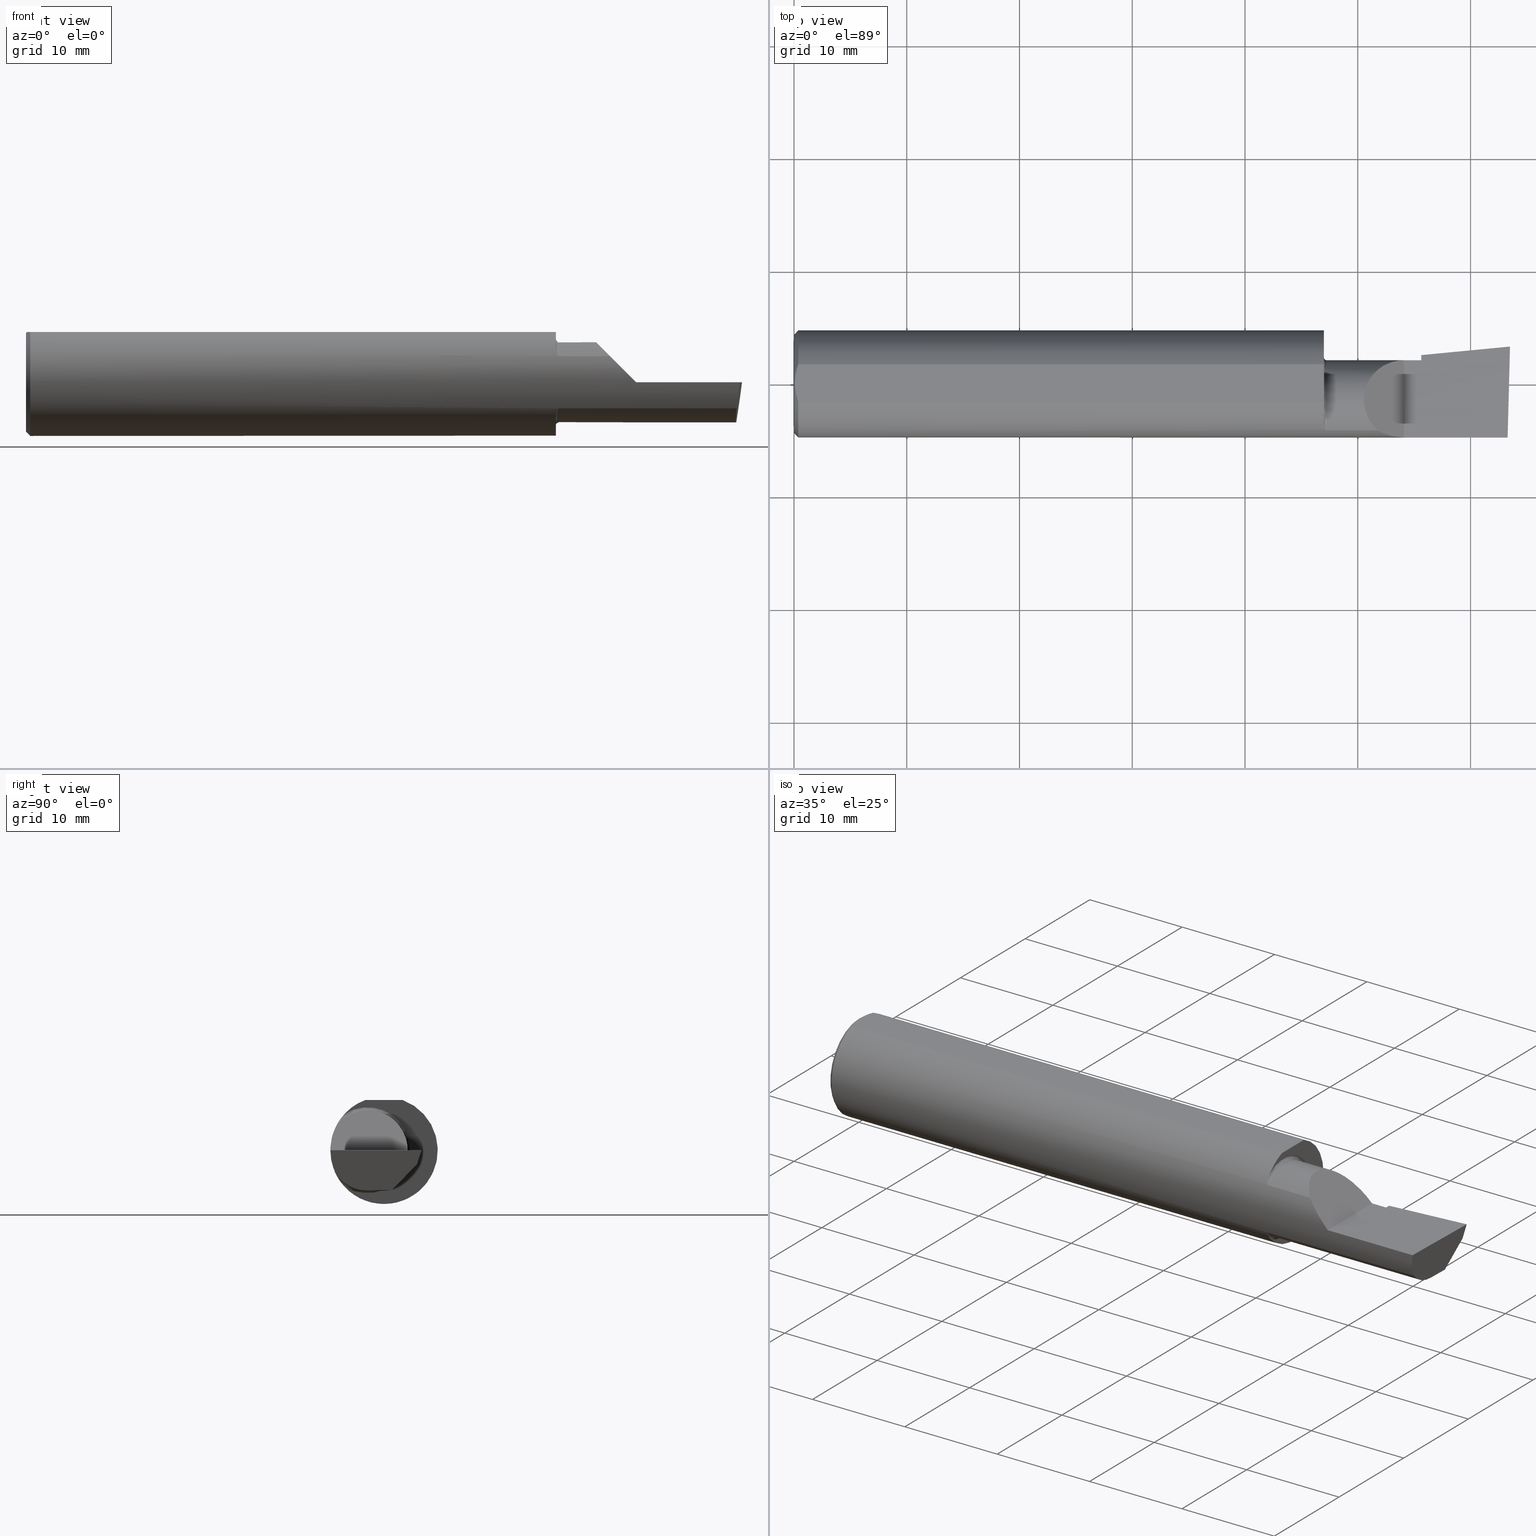
[diagram: canonical four-view strip — front | top / right | iso, engineering-drawing reading convention]
A machine part, canonical four-view strip (front | top / right | iso — engineering-drawing reading convention). The complete STEP part file that produces these views, byte-faithful:
ISO-10303-21;
HEADER;
FILE_DESCRIPTION (( 'STEP AP214' ),
    '1' );
FILE_NAME ('B320600.STEP',
    '2020-05-07T19:08:42',
    ( '' ),
    ( '' ),
    'SwSTEP 2.0',
    'SolidWorks 2018',
    '' );
FILE_SCHEMA (( 'AUTOMOTIVE_DESIGN' ));
ENDSEC;

DATA;
#1 = CARTESIAN_POINT ( 'NONE',  ( 1.850000000000000311, 0.0000000000000000000, 0.0000000000000000000 ) ) ;
#2 = ORIENTED_EDGE ( 'NONE', *, *, #427, .T. ) ;
#3 = APPLICATION_CONTEXT ( 'automotive_design' ) ;
#4 =( NAMED_UNIT ( * ) SI_UNIT ( $, .STERADIAN. ) SOLID_ANGLE_UNIT ( ) );
#5 = FACE_OUTER_BOUND ( 'NONE', #364, .T. ) ;
#6 = AXIS2_PLACEMENT_3D ( 'NONE', #69, #138, #185 ) ;
#7 = CYLINDRICAL_SURFACE ( 'NONE', #182, 0.1400500000000000078 ) ;
#8 = CARTESIAN_POINT ( 'NONE',  ( 0.0000000000000000000, 0.06597272163553663527, 0.1753499999999999781 ) ) ;
#9 = CARTESIAN_POINT ( 'NONE',  ( 2.189999999999999947, 0.02208021110064905049, -0.1153121786430048451 ) ) ;
#10 =( NAMED_UNIT ( * ) PLANE_ANGLE_UNIT ( ) SI_UNIT ( $, .RADIAN. ) );
#11 = DIRECTION ( 'NONE',  ( -6.829619984160658046E-18, 1.000000000000000000, 0.0000000000000000000 ) ) ;
#12 = AXIS2_PLACEMENT_3D ( 'NONE', #357, #457, #370 ) ;
#13 = CIRCLE ( 'NONE', #402, 0.1873499999999999888 ) ;
#14 = DIRECTION ( 'NONE',  ( 0.0000000000000000000, 0.0000000000000000000, 1.000000000000000000 ) ) ;
#15 =( CONVERSION_BASED_UNIT ( 'INCH', #329 ) LENGTH_UNIT ( ) NAMED_UNIT ( #189 ) );
#16 = CIRCLE ( 'NONE', #408, 0.1873499999999999888 ) ;
#17 = ORIENTED_EDGE ( 'NONE', *, *, #516, .F. ) ;
#18 = EDGE_CURVE ( 'NONE', #362, #407, #244, .T. ) ;
#19 =( LENGTH_UNIT ( ) NAMED_UNIT ( * ) SI_UNIT ( $, .METRE. ) );
#20 = CARTESIAN_POINT ( 'NONE',  ( 2.129999999999999893, -0.2500000000000000555, 1.065442715258197396E-16 ) ) ;
#21 = ORIENTED_EDGE ( 'NONE', *, *, #369, .T. ) ;
#22 = DIRECTION ( 'NONE',  ( 4.755568962650851256E-18, -0.6963153109074922131, -0.7177360153954950306 ) ) ;
#23 = CARTESIAN_POINT ( 'NONE',  ( 2.189999999999999947, 0.09745742888373050417, -0.01088401009027229610 ) ) ;
#24 = CARTESIAN_POINT ( 'NONE',  ( 2.129999999999999893, 0.08264999999999990410, 1.065442715258197396E-16 ) ) ;
#25 = CARTESIAN_POINT ( 'NONE',  ( 0.01499999999999999424, 0.0000000000000000000, 0.0000000000000000000 ) ) ;
#26 = CARTESIAN_POINT ( 'NONE',  ( 1.850000000000000311, -0.1383256097560975062, -0.1263568288047932087 ) ) ;
#27 = AXIS2_PLACEMENT_3D ( 'NONE', #540, #150, #441 ) ;
#28 = ADVANCED_FACE ( 'NONE', ( #264 ), #250, .T. ) ;
#29 = CARTESIAN_POINT ( 'NONE',  ( 0.0000000000000000000, 0.0000000000000000000, 0.0000000000000000000 ) ) ;
#30 = DIRECTION ( 'NONE',  ( 4.755568962650851256E-18, -0.6963153109074922131, -0.7177360153954950306 ) ) ;
#31 = PRODUCT_DEFINITION_CONTEXT ( 'detailed design', #3, 'design' ) ;
#32 = CARTESIAN_POINT ( 'NONE',  ( 2.129999999999999893, -0.1873499999999999888, 1.065442715258197396E-16 ) ) ;
#33 = VECTOR ( 'NONE', #122, 39.37007874015748143 ) ;
#34 = VERTEX_POINT ( 'NONE', #345 ) ;
#35 = CARTESIAN_POINT ( 'NONE',  ( 1.860000000000000098, -0.05739999999999999963, 0.0000000000000000000 ) ) ;
#36 = EDGE_CURVE ( 'NONE', #588, #563, #304, .T. ) ;
#37 = EDGE_LOOP ( 'NONE', ( #204, #493, #44, #539, #593, #305 ) ) ;
#38 = CARTESIAN_POINT ( 'NONE',  ( 2.129999999999999893, 0.08264999999999990410, 1.065442715258197396E-16 ) ) ;
#39 = CARTESIAN_POINT ( 'NONE',  ( 0.01499999999999999424, 0.06597272163553663527, 0.1753499999999999781 ) ) ;
#40 = AXIS2_PLACEMENT_3D ( 'NONE', #35, #217, #134 ) ;
#41 = SURFACE_STYLE_FILL_AREA ( #174 ) ;
#42 = CARTESIAN_POINT ( 'NONE',  ( 2.097861799102314961, -0.1873500000000000165, 0.03213820089768509858 ) ) ;
#43 = VECTOR ( 'NONE', #90, 39.37007874015748143 ) ;
#44 = ORIENTED_EDGE ( 'NONE', *, *, #391, .F. ) ;
#45 = EDGE_CURVE ( 'NONE', #484, #512, #505, .T. ) ;
#46 = DIRECTION ( 'NONE',  ( -0.7071067811865511255, 0.0000000000000000000, 0.7071067811865437980 ) ) ;
#47 = STYLED_ITEM ( 'NONE', ( #56 ), #438 ) ;
#48 = CARTESIAN_POINT ( 'NONE',  ( 0.01499999999999999424, 0.0000000000000000000, 0.0000000000000000000 ) ) ;
#49 = CARTESIAN_POINT ( 'NONE',  ( 0.01499999999999999424, 2.294375778202566330E-17, 0.1873499999999999888 ) ) ;
#50 = VECTOR ( 'NONE', #83, 39.37007874015748143 ) ;
#51 = LINE ( 'NONE', #115, #43 ) ;
#52 = EDGE_CURVE ( 'NONE', #301, #147, #532, .T. ) ;
#53 = CARTESIAN_POINT ( 'NONE',  ( 2.189999999999999947, 0.1008003950587628567, 0.0000000000000000000 ) ) ;
#54 =( CONVERSION_BASED_UNIT ( 'INCH', #392 ) LENGTH_UNIT ( ) NAMED_UNIT ( #422 ) );
#55 = FACE_OUTER_BOUND ( 'NONE', #545, .T. ) ;
#56 = PRESENTATION_STYLE_ASSIGNMENT (( #164 ) ) ;
#57 = DIRECTION ( 'NONE',  ( 0.0000000000000000000, 0.2936076258024060137, 0.9559260233253795702 ) ) ;
#58 = FACE_OUTER_BOUND ( 'NONE', #65, .T. ) ;
#59 = DIRECTION ( 'NONE',  ( 0.0000000000000000000, 0.0000000000000000000, -1.000000000000000000 ) ) ;
#60 = AXIS2_PLACEMENT_3D ( 'NONE', #548, #386, #199 ) ;
#61 = DIRECTION ( 'NONE',  ( 1.000000000000000000, 0.0000000000000000000, 0.0000000000000000000 ) ) ;
#62 = VERTEX_POINT ( 'NONE', #284 ) ;
#63 = CARTESIAN_POINT ( 'NONE',  ( 2.189999999999999947, -0.05739999999999999963, -0.1400500000000000633 ) ) ;
#64 = DIRECTION ( 'NONE',  ( -1.000000000000000000, -6.829619984160658046E-18, -0.0000000000000000000 ) ) ;
#65 = EDGE_LOOP ( 'NONE', ( #2, #534 ) ) ;
#66 = CARTESIAN_POINT ( 'NONE',  ( 0.0000000000000000000, 2.202527268266512578E-17, 0.1723499999999996424 ) ) ;
#67 = CARTESIAN_POINT ( 'NONE',  ( 0.0000000000000000000, -0.05740000000000001351, 0.0000000000000000000 ) ) ;
#68 = FACE_OUTER_BOUND ( 'NONE', #458, .T. ) ;
#69 = CARTESIAN_POINT ( 'NONE',  ( 1.860000000000000098, -0.05740000000000000657, 0.0000000000000000000 ) ) ;
#70 = STYLED_ITEM ( 'NONE', ( #163 ), #429 ) ;
#71 = CARTESIAN_POINT ( 'NONE',  ( 2.189999999999999947, 0.06670933817657891118, -0.06931012851386068874 ) ) ;
#72 =( NAMED_UNIT ( * ) SI_UNIT ( $, .STERADIAN. ) SOLID_ANGLE_UNIT ( ) );
#73 = TOROIDAL_SURFACE ( 'NONE', #40, 0.1500499999999999889, 0.009999999999999944697 ) ;
#74 = DIRECTION ( 'NONE',  ( 1.000000000000000000, 0.0000000000000000000, 0.0000000000000000000 ) ) ;
#75 = ADVANCED_FACE ( 'NONE', ( #555 ), #114, .F. ) ;
#76 = CARTESIAN_POINT ( 'NONE',  ( 0.01499999999999999424, 0.0000000000000000000, -0.1873499999999999888 ) ) ;
#77 = FACE_OUTER_BOUND ( 'NONE', #451, .T. ) ;
#78 = DIRECTION ( 'NONE',  ( 2.005228508682077051E-18, -0.2936076258024061247, -0.9559260233253795702 ) ) ;
#79 = ORIENTED_EDGE ( 'NONE', *, *, #492, .T. ) ;
#80 = AXIS2_PLACEMENT_3D ( 'NONE', #514, #573, #289 ) ;
#81 = CARTESIAN_POINT ( 'NONE',  ( 1.852284340146846953, -0.1548226717605716285, -0.1055657780131311618 ) ) ;
#82 =( GEOMETRIC_REPRESENTATION_CONTEXT ( 3 ) GLOBAL_UNCERTAINTY_ASSIGNED_CONTEXT ( ( #308 ) ) GLOBAL_UNIT_ASSIGNED_CONTEXT ( ( #157, #144, #136 ) ) REPRESENTATION_CONTEXT ( 'NONE', 'WORKASPACE' ) );
#83 = DIRECTION ( 'NONE',  ( -6.829619984160658816E-18, 1.000000000000000000, 7.059994452165177242E-34 ) ) ;
#84 = ORIENTED_EDGE ( 'NONE', *, *, #249, .T. ) ;
#85 = CARTESIAN_POINT ( 'NONE',  ( 0.0000000000000000000, 0.0000000000000000000, 0.0000000000000000000 ) ) ;
#86 = CARTESIAN_POINT ( 'NONE',  ( 2.024999999999999911, -0.1635956445993030084, -0.09130436773856176469 ) ) ;
#87 = EDGE_CURVE ( 'NONE', #563, #519, #343, .T. ) ;
#88 = ADVANCED_FACE ( 'NONE', ( #372 ), #106, .T. ) ;
#89 = DIRECTION ( 'NONE',  ( 1.000000000000000000, 0.0000000000000000000, 0.0000000000000000000 ) ) ;
#90 = DIRECTION ( 'NONE',  ( 0.7071067811865390240, 0.0000000000000000000, -0.7071067811865560104 ) ) ;
#91 = ORIENTED_EDGE ( 'NONE', *, *, #358, .F. ) ;
#92 = FACE_OUTER_BOUND ( 'NONE', #135, .T. ) ;
#93 = ORIENTED_EDGE ( 'NONE', *, *, #527, .F. ) ;
#94 = ORIENTED_EDGE ( 'NONE', *, *, #187, .T. ) ;
#95 = ORIENTED_EDGE ( 'NONE', *, *, #87, .F. ) ;
#96 = PLANE ( 'NONE',  #436 ) ;
#97 = VECTOR ( 'NONE', #469, 39.37007874015748854 ) ;
#98 = DIRECTION ( 'NONE',  ( -0.09165774897393341725, 0.9519021185660614393, -0.2923717047227303301 ) ) ;
#99 = CARTESIAN_POINT ( 'NONE',  ( 0.0000000000000000000, 0.0000000000000000000, -0.1723499999999996424 ) ) ;
#100 = AXIS2_PLACEMENT_3D ( 'NONE', #326, #510, #190 ) ;
#101 = VECTOR ( 'NONE', #567, 39.37007874015748143 ) ;
#102 = CARTESIAN_POINT ( 'NONE',  ( 0.004093196532652216939, -0.02240707710020816909, 0.1753499999999999504 ) ) ;
#103 = CARTESIAN_POINT ( 'NONE',  ( 1.858200855161538323, -0.1632467142437135921, -0.09192985110639206869 ) ) ;
#104 = ORIENTED_EDGE ( 'NONE', *, *, #349, .F. ) ;
#105 = FILL_AREA_STYLE_COLOUR ( '', #474 ) ;
#106 = PLANE ( 'NONE',  #146 ) ;
#107 = CARTESIAN_POINT ( 'NONE',  ( 1.850000000000000311, -0.1383256097560975062, 0.1263568288047932087 ) ) ;
#108 = ORIENTED_EDGE ( 'NONE', *, *, #36, .F. ) ;
#109 = LINE ( 'NONE', #121, #420 ) ;
#110 = VERTEX_POINT ( 'NONE', #584 ) ;
#111 = CARTESIAN_POINT ( 'NONE',  ( 2.477873865042410806, -0.05739999999999999963, -0.1400500000000000633 ) ) ;
#112 = DIRECTION ( 'NONE',  ( 1.000000000000000000, 0.0000000000000000000, 0.0000000000000000000 ) ) ;
#113 = VECTOR ( 'NONE', #491, 39.37007874015748143 ) ;
#114 = PLANE ( 'NONE',  #80 ) ;
#115 = CARTESIAN_POINT ( 'NONE',  ( 0.01499999999999999424, 0.0000000000000000000, -0.1873499999999999888 ) ) ;
#116 = FACE_OUTER_BOUND ( 'NONE', #294, .T. ) ;
#117 = EDGE_CURVE ( 'NONE', #172, #354, #128, .T. ) ;
#118 = VECTOR ( 'NONE', #426, 39.37007874015748854 ) ;
#119 = CARTESIAN_POINT ( 'NONE',  ( 2.189999999999999947, 0.06026672169836851112, -0.07595093880103585826 ) ) ;
#120 = CARTESIAN_POINT ( 'NONE',  ( 1.860000000000000098, -0.1635956445993029529, 0.09130436773856188959 ) ) ;
#121 = CARTESIAN_POINT ( 'NONE',  ( 2.511419111345317923, 0.1163922996227946260, -0.04999999999999999584 ) ) ;
#122 = DIRECTION ( 'NONE',  ( -0.0000000000000000000, 1.000000000000000000, -0.0000000000000000000 ) ) ;
#123 = DIRECTION ( 'NONE',  ( -0.9953961983671800740, -0.09584575252021031166, 0.0000000000000000000 ) ) ;
#124 = CIRCLE ( 'NONE', #178, 0.1400500000000000356 ) ;
#125 =( NAMED_UNIT ( * ) PLANE_ANGLE_UNIT ( ) SI_UNIT ( $, .RADIAN. ) );
#126 = APPLICATION_CONTEXT ( 'automotive_design' ) ;
#127 = ADVANCED_FACE ( 'NONE', ( #5 ), #269, .T. ) ;
#128 =( BOUNDED_CURVE ( )  B_SPLINE_CURVE ( 3, ( #501, #280, #219, #268 ),
 .UNSPECIFIED., .F., .F. ) 
 B_SPLINE_CURVE_WITH_KNOTS ( ( 4, 4 ),
 ( 5.632580117768155148, 6.493234751459282528 ),
 .UNSPECIFIED. ) 
 CURVE ( )  GEOMETRIC_REPRESENTATION_ITEM ( )  RATIONAL_B_SPLINE_CURVE ( ( 1.000000000000000000, 0.9392195014330944058, 0.9392195014330944058, 1.000000000000000000 ) ) 
 REPRESENTATION_ITEM ( '' )  );
#129 = APPLICATION_PROTOCOL_DEFINITION ( 'draft international standard', 'automotive_design', 1998, #126 ) ;
#130 = ORIENTED_EDGE ( 'NONE', *, *, #410, .T. ) ;
#131 = FILL_AREA_STYLE ('',( #423 ) ) ;
#132 = SURFACE_STYLE_FILL_AREA ( #131 ) ;
#133 = DIRECTION ( 'NONE',  ( 0.0000000000000000000, 0.0000000000000000000, 1.000000000000000000 ) ) ;
#134 = DIRECTION ( 'NONE',  ( 6.829619984160658046E-18, -1.000000000000000000, 0.0000000000000000000 ) ) ;
#135 = EDGE_LOOP ( 'NONE', ( #475, #231, #424, #168 ) ) ;
#136 =( NAMED_UNIT ( * ) SI_UNIT ( $, .STERADIAN. ) SOLID_ANGLE_UNIT ( ) );
#137 = PLANE ( 'NONE',  #291 ) ;
#138 = DIRECTION ( 'NONE',  ( -1.000000000000000000, -6.829619984160658046E-18, -0.0000000000000000000 ) ) ;
#139 = AXIS2_PLACEMENT_3D ( 'NONE', #227, #325, #382 ) ;
#140 = VECTOR ( 'NONE', #312, 39.37007874015748143 ) ;
#141 = ADVANCED_FACE ( 'NONE', ( #55 ), #197, .F. ) ;
#142 = DIRECTION ( 'NONE',  ( 0.9953961983671787417, 0.09584575252022456415, -1.028972571603813720E-16 ) ) ;
#143 = ORIENTED_EDGE ( 'NONE', *, *, #410, .F. ) ;
#144 =( NAMED_UNIT ( * ) PLANE_ANGLE_UNIT ( ) SI_UNIT ( $, .RADIAN. ) );
#145 = PRESENTATION_LAYER_ASSIGNMENT (  '', '', ( #70 ) ) ;
#146 = AXIS2_PLACEMENT_3D ( 'NONE', #530, #216, #399 ) ;
#147 = VERTEX_POINT ( 'NONE', #321 ) ;
#148 = ORIENTED_EDGE ( 'NONE', *, *, #397, .F. ) ;
#149 = LINE ( 'NONE', #71, #203 ) ;
#150 = DIRECTION ( 'NONE',  ( -1.000000000000000000, -0.0000000000000000000, -0.0000000000000000000 ) ) ;
#151 = EDGE_LOOP ( 'NONE', ( #439, #561, #502, #482 ) ) ;
#152 = PRESENTATION_LAYER_ASSIGNMENT (  '', '', ( #47 ) ) ;
#153 = LINE ( 'NONE', #170, #140 ) ;
#154 = PRODUCT ( 'B320600', 'B320600', '', ( #463 ) ) ;
#155 = EDGE_CURVE ( 'NONE', #536, #354, #183, .T. ) ;
#156 = VECTOR ( 'NONE', #307, 39.37007874015748143 ) ;
#157 =( CONVERSION_BASED_UNIT ( 'INCH', #320 ) LENGTH_UNIT ( ) NAMED_UNIT ( #375 ) );
#158 = ORIENTED_EDGE ( 'NONE', *, *, #455, .F. ) ;
#159 = DIRECTION ( 'NONE',  ( 6.829619984160658046E-18, -1.000000000000000000, 0.0000000000000000000 ) ) ;
#160 =( LENGTH_UNIT ( ) NAMED_UNIT ( * ) SI_UNIT ( $, .METRE. ) );
#161 = EDGE_CURVE ( 'NONE', #62, #309, #464, .T. ) ;
#162 = CARTESIAN_POINT ( 'NONE',  ( 1.921229036482944075, -0.06260079402492431389, 0.2087709635170538203 ) ) ;
#163 = PRESENTATION_STYLE_ASSIGNMENT (( #525 ) ) ;
#164 = SURFACE_STYLE_USAGE ( .BOTH. , #166 ) ;
#165 = VECTOR ( 'NONE', #173, 39.37007874015748143 ) ;
#166 = SURFACE_SIDE_STYLE ('',( #41 ) ) ;
#167 = FACE_OUTER_BOUND ( 'NONE', #558, .T. ) ;
#168 = ORIENTED_EDGE ( 'NONE', *, *, #391, .T. ) ;
#169 = DIRECTION ( 'NONE',  ( -1.000000000000000000, -0.0000000000000000000, -0.0000000000000000000 ) ) ;
#170 = CARTESIAN_POINT ( 'NONE',  ( 2.500000000000000000, -0.05739999999999999963, -0.1400500000000000633 ) ) ;
#171 = VECTOR ( 'NONE', #533, 39.37007874015748143 ) ;
#172 = VERTEX_POINT ( 'NONE', #380 ) ;
#173 = DIRECTION ( 'NONE',  ( -1.000000000000000000, -0.0000000000000000000, -0.0000000000000000000 ) ) ;
#174 = FILL_AREA_STYLE ('',( #105 ) ) ;
#175 = LINE ( 'NONE', #340, #118 ) ;
#176 = EDGE_LOOP ( 'NONE', ( #261, #481, #21, #323 ) ) ;
#177 = ORIENTED_EDGE ( 'NONE', *, *, #390, .T. ) ;
#178 = AXIS2_PLACEMENT_3D ( 'NONE', #317, #275, #313 ) ;
#179 = ORIENTED_EDGE ( 'NONE', *, *, #459, .T. ) ;
#180 = CARTESIAN_POINT ( 'NONE',  ( 0.003000000000000218638, 2.334609556160449697E-17, 0.1753499999999999781 ) ) ;
#181 = APPLICATION_PROTOCOL_DEFINITION ( 'draft international standard', 'automotive_design', 1998, #3 ) ;
#182 = AXIS2_PLACEMENT_3D ( 'NONE', #67, #64, #314 ) ;
#183 = LINE ( 'NONE', #403, #495 ) ;
#184 = CARTESIAN_POINT ( 'NONE',  ( 2.491672876940991710, -0.1873499999999999888, 6.915950918908297591E-17 ) ) ;
#185 = DIRECTION ( 'NONE',  ( 0.0000000000000000000, -1.000000000000000000, 0.0000000000000000000 ) ) ;
#186 = VECTOR ( 'NONE', #292, 39.37007874015748143 ) ;
#187 = EDGE_CURVE ( 'NONE', #263, #398, #318, .T. ) ;
#188 = DIRECTION ( 'NONE',  ( -0.7071067811865439090, 0.0000000000000000000, -0.7071067811865512365 ) ) ;
#189 = DIMENSIONAL_EXPONENTS ( 1.000000000000000000, 0.0000000000000000000, 0.0000000000000000000, 0.0000000000000000000, 0.0000000000000000000, 0.0000000000000000000, 0.0000000000000000000 ) ;
#190 = DIRECTION ( 'NONE',  ( 0.1219104985251942275, 0.0000000000000000000, 0.9925410975618785825 ) ) ;
#191 = UNCERTAINTY_MEASURE_WITH_UNIT (LENGTH_MEASURE( 1.000000000000000082E-05 ), #15, 'distance_accuracy_value', 'NONE');
#192 = CARTESIAN_POINT ( 'NONE',  ( 2.487725449370724817, -0.1873500000000000443, -0.03213820089768506388 ) ) ;
#193 = CARTESIAN_POINT ( 'NONE',  ( 1.850000000000000311, 0.09264999999999999625, 0.0000000000000000000 ) ) ;
#194 = CARTESIAN_POINT ( 'NONE',  ( 2.493766568580444432, 0.1168246249203732934, -0.04780233936830599606 ) ) ;
#195 = ADVANCED_FACE ( 'NONE', ( #417 ), #137, .F. ) ;
#196 = CARTESIAN_POINT ( 'NONE',  ( 0.003000000000000169632, 0.01127363201155560934, 0.1753499999999999781 ) ) ;
#197 = PLANE ( 'NONE',  #274 ) ;
#198 = ORIENTED_EDGE ( 'NONE', *, *, #331, .T. ) ;
#199 = DIRECTION ( 'NONE',  ( 6.829619984160658046E-18, -1.000000000000000000, 0.0000000000000000000 ) ) ;
#200 = CARTESIAN_POINT ( 'NONE',  ( 1.860000000000000098, -0.1635956445993029251, -0.09130436773856194510 ) ) ;
#201 = EDGE_CURVE ( 'NONE', #263, #371, #124, .T. ) ;
#202 = MECHANICAL_DESIGN_GEOMETRIC_PRESENTATION_REPRESENTATION (  '', ( #70 ), #215 ) ;
#203 = VECTOR ( 'NONE', #569, 39.37007874015748854 ) ;
#204 = ORIENTED_EDGE ( 'NONE', *, *, #45, .F. ) ;
#205 = CARTESIAN_POINT ( 'NONE',  ( 2.189999999999999947, 0.06670933817657891118, -0.06931012851386068874 ) ) ;
#206 = EDGE_LOOP ( 'NONE', ( #575, #211, #315, #472, #500 ) ) ;
#207 = ORIENTED_EDGE ( 'NONE', *, *, #87, .T. ) ;
#208 = ORIENTED_EDGE ( 'NONE', *, *, #117, .F. ) ;
#209 = CARTESIAN_POINT ( 'NONE',  ( 1.860000000000000098, -0.1635956445993029251, -0.09130436773856194510 ) ) ;
#210 = PLANE ( 'NONE',  #541 ) ;
#211 = ORIENTED_EDGE ( 'NONE', *, *, #52, .T. ) ;
#212 = VECTOR ( 'NONE', #300, 39.37007874015748143 ) ;
#213 = DIRECTION ( 'NONE',  ( 0.0000000000000000000, 0.0000000000000000000, 1.000000000000000000 ) ) ;
#214 = DIRECTION ( 'NONE',  ( 0.0000000000000000000, 0.0000000000000000000, 1.000000000000000000 ) ) ;
#215 =( GEOMETRIC_REPRESENTATION_CONTEXT ( 3 ) GLOBAL_UNCERTAINTY_ASSIGNED_CONTEXT ( ( #191 ) ) GLOBAL_UNIT_ASSIGNED_CONTEXT ( ( #15, #10, #4 ) ) REPRESENTATION_CONTEXT ( 'NONE', 'WORKASPACE' ) );
#216 = DIRECTION ( 'NONE',  ( -0.06894566448119622548, 0.7160281025913036723, -0.6946583704589932573 ) ) ;
#217 = DIRECTION ( 'NONE',  ( -1.000000000000000000, -6.829619984160658046E-18, -0.0000000000000000000 ) ) ;
#218 = VECTOR ( 'NONE', #74, 39.37007874015748143 ) ;
#219 = CARTESIAN_POINT ( 'NONE',  ( 2.476787929832031221, -0.09887019258091186980, -0.1400500000000000356 ) ) ;
#220 = CARTESIAN_POINT ( 'NONE',  ( 2.481080296960508580, -0.1635956445993030084, -0.09130436773856176469 ) ) ;
#221 = CARTESIAN_POINT ( 'NONE',  ( 2.509953961983671711, 0.1316084575252021438, -6.829619984160658046E-17 ) ) ;
#222 = CARTESIAN_POINT ( 'NONE',  ( 2.500000000000000000, 0.2373500000000000332, 0.1753499999999999504 ) ) ;
#223 = ORIENTED_EDGE ( 'NONE', *, *, #406, .T. ) ;
#224 = CARTESIAN_POINT ( 'NONE',  ( -9.564882787816664242E-19, 0.08264999999999998737, 3.267291166268304703E-16 ) ) ;
#225 = CARTESIAN_POINT ( 'NONE',  ( 2.480058035321255794, 0.02601009779168080016, -0.1400500000000000633 ) ) ;
#226 = ORIENTED_EDGE ( 'NONE', *, *, #352, .F. ) ;
#227 = CARTESIAN_POINT ( 'NONE',  ( 2.189999999999999947, -0.05739999999999999963, 0.0000000000000000000 ) ) ;
#228 = VERTEX_POINT ( 'NONE', #209 ) ;
#229 = ORIENTED_EDGE ( 'NONE', *, *, #390, .F. ) ;
#230 = PLANE ( 'NONE',  #260 ) ;
#231 = ORIENTED_EDGE ( 'NONE', *, *, #566, .T. ) ;
#232 = EDGE_CURVE ( 'NONE', #512, #519, #255, .T. ) ;
#233 = AXIS2_PLACEMENT_3D ( 'NONE', #494, #446, #14 ) ;
#234 = ORIENTED_EDGE ( 'NONE', *, *, #52, .F. ) ;
#235 = VECTOR ( 'NONE', #253, 39.37007874015748143 ) ;
#236 = CIRCLE ( 'NONE', #389, 0.1873499999999999888 ) ;
#237 = CARTESIAN_POINT ( 'NONE',  ( 2.038695632261437130, -0.1635956445993029529, 0.09130436773856191734 ) ) ;
#238 = CARTESIAN_POINT ( 'NONE',  ( 2.066758987970638284, -0.1792580844883770730, 0.06324101202936138755 ) ) ;
#239 =( GEOMETRIC_REPRESENTATION_CONTEXT ( 3 ) GLOBAL_UNCERTAINTY_ASSIGNED_CONTEXT ( ( #594 ) ) GLOBAL_UNIT_ASSIGNED_CONTEXT ( ( #54, #125, #72 ) ) REPRESENTATION_CONTEXT ( 'NONE', 'WORKASPACE' ) );
#240 = CARTESIAN_POINT ( 'NONE',  ( 2.484117089522337452, -0.1792580844883771007, -0.06324101202936138755 ) ) ;
#241 = CARTESIAN_POINT ( 'NONE',  ( 2.189999999999999947, 0.08544315931885974880, -0.05000000000000000278 ) ) ;
#242 = CARTESIAN_POINT ( 'NONE',  ( 2.500188977433779769, 0.1311105994646662165, 0.001440373173041280524 ) ) ;
#243 = ORIENTED_EDGE ( 'NONE', *, *, #352, .T. ) ;
#244 = CIRCLE ( 'NONE', #12, 0.1873499999999999888 ) ;
#245 = DIRECTION ( 'NONE',  ( 0.0000000000000000000, 1.000000000000000000, 0.0000000000000000000 ) ) ;
#246 = CARTESIAN_POINT ( 'NONE',  ( 2.189999999999999947, 0.06670933817657891118, -0.06931012851386068874 ) ) ;
#247 = ADVANCED_FACE ( 'NONE', ( #396 ), #430, .T. ) ;
#248 = DIRECTION ( 'NONE',  ( 0.0000000000000000000, -1.438723400918613551E-16, -1.000000000000000000 ) ) ;
#249 = EDGE_CURVE ( 'NONE', #338, #34, #542, .T. ) ;
#250 = PLANE ( 'NONE',  #60 ) ;
#251 = CARTESIAN_POINT ( 'NONE',  ( 2.129999999999999893, -0.1873499999999999888, 1.065442715258197396E-16 ) ) ;
#252 = ADVANCED_FACE ( 'NONE', ( #58 ), #388, .F. ) ;
#253 = DIRECTION ( 'NONE',  ( 0.7071067811865390240, 8.659560562355036396E-17, 0.7071067811865560104 ) ) ;
#254 = PRODUCT_DEFINITION ( 'UNKNOWN', '', #393, #31 ) ;
#255 = LINE ( 'NONE', #503, #33 ) ;
#256 = CARTESIAN_POINT ( 'NONE',  ( 2.024999999999999911, -0.1635956445993030084, 0.09130436773856176469 ) ) ;
#257 = AXIS2_PLACEMENT_3D ( 'NONE', #332, #473, #379 ) ;
#258 = CIRCLE ( 'NONE', #6, 0.1400499999999999801 ) ;
#259 = FACE_OUTER_BOUND ( 'NONE', #266, .T. ) ;
#260 = AXIS2_PLACEMENT_3D ( 'NONE', #221, #98, #57 ) ;
#261 = ORIENTED_EDGE ( 'NONE', *, *, #488, .T. ) ;
#262 = LINE ( 'NONE', #205, #437 ) ;
#263 = VERTEX_POINT ( 'NONE', #9 ) ;
#264 = FACE_OUTER_BOUND ( 'NONE', #176, .T. ) ;
#265 = CARTESIAN_POINT ( 'NONE',  ( 1.850000000000000533, -0.1434457138613161875, -0.1207517378170855221 ) ) ;
#266 = EDGE_LOOP ( 'NONE', ( #586, #17, #526, #226, #432 ) ) ;
#267 = CARTESIAN_POINT ( 'NONE',  ( 1.857002686248069967, -0.1625222757049325228, 0.09320450095779621302 ) ) ;
#268 = CARTESIAN_POINT ( 'NONE',  ( 2.477873865042410806, -0.05739999999999999963, -0.1400500000000000633 ) ) ;
#269 = CYLINDRICAL_SURFACE ( 'NONE', #233, 0.1873499999999999888 ) ;
#270 = CARTESIAN_POINT ( 'NONE',  ( 2.038695632261437130, -0.1635956445993029529, 0.09130436773856191734 ) ) ;
#271 = CARTESIAN_POINT ( 'NONE',  ( 1.850535130224571612, -0.1482744458446705882, -0.1147666934430601887 ) ) ;
#272 = CARTESIAN_POINT ( 'NONE',  ( 3.377502344341257155E-32, -0.1873499999999999610, 3.267291166268304703E-16 ) ) ;
#273 = ORIENTED_EDGE ( 'NONE', *, *, #440, .F. ) ;
#274 = AXIS2_PLACEMENT_3D ( 'NONE', #53, #277, #159 ) ;
#275 = DIRECTION ( 'NONE',  ( -1.000000000000000000, -6.829619984160658046E-18, -0.0000000000000000000 ) ) ;
#276 = CARTESIAN_POINT ( 'NONE',  ( 1.855249642630817153, -0.1607705839484630805, -0.09620717711675592920 ) ) ;
#277 = DIRECTION ( 'NONE',  ( -1.000000000000000000, -6.829619984160658046E-18, 0.0000000000000000000 ) ) ;
#278 = B_SPLINE_CURVE_WITH_KNOTS ( 'NONE', 3,
 ( #507, #499, #425, #508, #374, #409, #385, #395, #267, #297, #336, #335 ),
 .UNSPECIFIED., .F., .F.,
 ( 4, 2, 2, 2, 2, 4 ),
 ( 0.0009392928737449068215, 0.001524303482983960841, 0.001816808787603487905, 0.001963061439913248510, 0.002036187766068128704, 0.002109314092223008898 ),
 .UNSPECIFIED. ) ;
#279 = ORIENTED_EDGE ( 'NONE', *, *, #418, .F. ) ;
#280 = CARTESIAN_POINT ( 'NONE',  ( 2.477925907309857401, -0.1365595166907235813, -0.1227499502647108609 ) ) ;
#281 = CARTESIAN_POINT ( 'NONE',  ( 1.850000000000000311, -0.06597272163553659363, 0.1753499999999999781 ) ) ;
#282 = CARTESIAN_POINT ( 'NONE',  ( 2.189999999999999947, 0.1008003950587628567, 0.0000000000000000000 ) ) ;
#283 = LINE ( 'NONE', #378, #212 ) ;
#284 = CARTESIAN_POINT ( 'NONE',  ( 2.189999999999999947, 0.08265000000000004288, 3.267291166268305196E-16 ) ) ;
#285 = DIRECTION ( 'NONE',  ( 0.1053106618240635256, 0.6976485211320198054, 0.7086580314005361814 ) ) ;
#286 = CARTESIAN_POINT ( 'NONE',  ( 0.008227791779583789808, -0.04447712204611815878, 0.1753499999999999781 ) ) ;
#287 = ORIENTED_EDGE ( 'NONE', *, *, #455, .T. ) ;
#288 =( BOUNDED_CURVE ( )  B_SPLINE_CURVE ( 3, ( #220, #240, #192, #184 ),
 .UNSPECIFIED., .F., .T. ) 
 B_SPLINE_CURVE_WITH_KNOTS ( ( 4, 4 ),
 ( 0.8516985021657650368, 1.360746882515200484 ),
 .UNSPECIFIED. ) 
 CURVE ( )  GEOMETRIC_REPRESENTATION_ITEM ( )  RATIONAL_B_SPLINE_CURVE ( ( 1.000000000000000000, 0.9785221379938656705, 0.9785221379938656705, 1.000000000000000000 ) ) 
 REPRESENTATION_ITEM ( '' )  );
#289 = DIRECTION ( 'NONE',  ( -1.000000000000000000, 0.0000000000000000000, 1.033731667140896077E-16 ) ) ;
#290 = CARTESIAN_POINT ( 'NONE',  ( 2.490039159128059953, -0.2497391662021650194, 6.932588350567417155E-17 ) ) ;
#291 = AXIS2_PLACEMENT_3D ( 'NONE', #531, #401, #476 ) ;
#292 = DIRECTION ( 'NONE',  ( -1.000000000000000000, -6.829619984160658046E-18, -0.0000000000000000000 ) ) ;
#293 = AXIS2_PLACEMENT_3D ( 'NONE', #25, #112, #59 ) ;
#294 = EDGE_LOOP ( 'NONE', ( #405, #94, #490 ) ) ;
#295 = ORIENTED_EDGE ( 'NONE', *, *, #400, .T. ) ;
#296 = CARTESIAN_POINT ( 'NONE',  ( 2.491672876940991710, -0.1873499999999999888, 6.915950918908297591E-17 ) ) ;
#297 = CARTESIAN_POINT ( 'NONE',  ( 1.858216394543445338, -0.1632528125625389848, 0.09191892236924030513 ) ) ;
#298 = CARTESIAN_POINT ( 'NONE',  ( 1.850000000000000311, 0.2373500000000000332, 0.1753499999999999504 ) ) ;
#299 = ADVANCED_FACE ( 'NONE', ( #92 ), #230, .T. ) ;
#300 = DIRECTION ( 'NONE',  ( 0.0000000000000000000, 1.000000000000000000, 8.537024980200821325E-17 ) ) ;
#301 = VERTEX_POINT ( 'NONE', #66 ) ;
#302 = EDGE_CURVE ( 'NONE', #442, #34, #16, .T. ) ;
#303 = CIRCLE ( 'NONE', #257, 0.1500499999999999889 ) ;
#304 = LINE ( 'NONE', #256, #101 ) ;
#305 = ORIENTED_EDGE ( 'NONE', *, *, #232, .F. ) ;
#306 = LINE ( 'NONE', #581, #553 ) ;
#307 = DIRECTION ( 'NONE',  ( 6.829619984160658046E-18, -1.000000000000000000, 1.438723400918613551E-16 ) ) ;
#308 = UNCERTAINTY_MEASURE_WITH_UNIT (LENGTH_MEASURE( 1.000000000000000082E-05 ), #157, 'distance_accuracy_value', 'NONE');
#309 = VERTEX_POINT ( 'NONE', #119 ) ;
#310 = DIRECTION ( 'NONE',  ( 6.829619984160658046E-18, -1.000000000000000000, 0.0000000000000000000 ) ) ;
#311 = CLOSED_SHELL ( 'NONE', ( #589, #28, #479, #195, #127, #384, #75, #513, #252, #341, #547, #247, #517, #299, #88, #141, #428 ) ) ;
#312 = DIRECTION ( 'NONE',  ( -1.000000000000000000, 5.691349986800549142E-18, -0.0000000000000000000 ) ) ;
#313 = DIRECTION ( 'NONE',  ( 0.0000000000000000000, -1.000000000000000000, 0.0000000000000000000 ) ) ;
#314 = DIRECTION ( 'NONE',  ( 6.829619984160658816E-18, -1.000000000000000000, 0.0000000000000000000 ) ) ;
#315 = ORIENTED_EDGE ( 'NONE', *, *, #346, .T. ) ;
#316 = DIRECTION ( 'NONE',  ( -1.000000000000000000, -6.829619984160658046E-18, 0.0000000000000000000 ) ) ;
#317 = CARTESIAN_POINT ( 'NONE',  ( 2.189999999999999947, -0.05739999999999999963, 0.0000000000000000000 ) ) ;
#318 = LINE ( 'NONE', #246, #387 ) ;
#319 = DIRECTION ( 'NONE',  ( -1.000000000000000000, -0.0000000000000000000, -0.0000000000000000000 ) ) ;
#320 = LENGTH_MEASURE_WITH_UNIT ( LENGTH_MEASURE( 0.02539999999999999897 ), #160 );
#321 = CARTESIAN_POINT ( 'NONE',  ( 0.003000000000000218638, 2.334609556160449697E-17, 0.1753499999999999781 ) ) ;
#322 = CONICAL_SURFACE ( 'NONE', #544, 0.1873499999999999888, 0.7853981633974602694 ) ;
#323 = ORIENTED_EDGE ( 'NONE', *, *, #161, .F. ) ;
#324 = CARTESIAN_POINT ( 'NONE',  ( 2.038695632261437130, -0.1635956445993029529, 0.09130436773856191734 ) ) ;
#325 = DIRECTION ( 'NONE',  ( -1.000000000000000000, -6.829619984160658046E-18, -0.0000000000000000000 ) ) ;
#326 = CARTESIAN_POINT ( 'NONE',  ( 2.475850273311264615, -0.1244607267090816621, -0.1422282308645907711 ) ) ;
#327 = ORIENTED_EDGE ( 'NONE', *, *, #369, .F. ) ;
#328 = CARTESIAN_POINT ( 'NONE',  ( 0.01499999999999999424, 0.0000000000000000000, 0.0000000000000000000 ) ) ;
#329 = LENGTH_MEASURE_WITH_UNIT ( LENGTH_MEASURE( 0.02539999999999999897 ), #571 );
#330 = ORIENTED_EDGE ( 'NONE', *, *, #161, .T. ) ;
#331 = EDGE_CURVE ( 'NONE', #519, #62, #376, .T. ) ;
#332 = CARTESIAN_POINT ( 'NONE',  ( 1.850000000000000311, -0.05740000000000000657, 0.0000000000000000000 ) ) ;
#333 = LINE ( 'NONE', #86, #186 ) ;
#334 = CARTESIAN_POINT ( 'NONE',  ( 0.01499999999999997863, -0.06597272163553657975, 0.1753499999999999781 ) ) ;
#335 = CARTESIAN_POINT ( 'NONE',  ( 1.860000000000000098, -0.1635956445993029529, 0.09130436773856188959 ) ) ;
#336 = CARTESIAN_POINT ( 'NONE',  ( 1.859029114488072842, -0.1635956446012896415, 0.09130436773500356928 ) ) ;
#337 = CARTESIAN_POINT ( 'NONE',  ( 0.01128414053810044941, -0.05542038647445821781, 0.1753499999999999781 ) ) ;
#338 = VERTEX_POINT ( 'NONE', #281 ) ;
#339 = CARTESIAN_POINT ( 'NONE',  ( 2.189999999999999947, -0.001919314351446888608, -0.1400500000000000911 ) ) ;
#340 = CARTESIAN_POINT ( 'NONE',  ( 2.491859106488688358, 0.02714641170210416524, -0.1400500000000000633 ) ) ;
#341 = ADVANCED_FACE ( 'NONE', ( #77 ), #322, .T. ) ;
#342 = CARTESIAN_POINT ( 'NONE',  ( 0.0000000000000000000, -0.06597272163553657975, 0.1753499999999999781 ) ) ;
#343 =( BOUNDED_CURVE ( )  B_SPLINE_CURVE ( 3, ( #270, #162, #591, #38 ),
 .UNSPECIFIED., .F., .F. ) 
 B_SPLINE_CURVE_WITH_KNOTS ( ( 4, 4 ),
 ( 5.422530673488458852, 7.853981633974482790 ),
 .UNSPECIFIED. ) 
 CURVE ( )  GEOMETRIC_REPRESENTATION_ITEM ( )  RATIONAL_B_SPLINE_CURVE ( ( 1.000000000000000000, 0.5651045289226863666, 0.5651045289226863666, 1.000000000000000000 ) ) 
 REPRESENTATION_ITEM ( '' )  );
#344 = LINE ( 'NONE', #290, #97 ) ;
#345 = CARTESIAN_POINT ( 'NONE',  ( 0.01499999999999997863, -0.06597272163553657975, 0.1753499999999999781 ) ) ;
#346 = EDGE_CURVE ( 'NONE', #147, #471, #564, .T. ) ;
#347 = ORIENTED_EDGE ( 'NONE', *, *, #449, .T. ) ;
#348 = VECTOR ( 'NONE', #285, 39.37007874015748854 ) ;
#349 = EDGE_CURVE ( 'NONE', #595, #588, #278, .T. ) ;
#350 = ORIENTED_EDGE ( 'NONE', *, *, #449, .F. ) ;
#351 = CARTESIAN_POINT ( 'NONE',  ( 1.850000000000000311, 0.06597272163553663527, 0.1753499999999999781 ) ) ;
#352 = EDGE_CURVE ( 'NONE', #34, #147, #550, .T. ) ;
#353 = ORIENTED_EDGE ( 'NONE', *, *, #516, .T. ) ;
#354 = VERTEX_POINT ( 'NONE', #111 ) ;
#355 = CONICAL_SURFACE ( 'NONE', #293, 0.1873499999999999888, 0.7853981633974602694 ) ;
#356 = VECTOR ( 'NONE', #78, 39.37007874015748143 ) ;
#357 = CARTESIAN_POINT ( 'NONE',  ( 1.850000000000000311, 0.0000000000000000000, 0.0000000000000000000 ) ) ;
#358 = EDGE_CURVE ( 'NONE', #471, #442, #236, .T. ) ;
#359 =( BOUNDED_CURVE ( )  B_SPLINE_CURVE ( 3, ( #251, #42, #238, #237 ),
 .UNSPECIFIED., .F., .F. ) 
 B_SPLINE_CURVE_WITH_KNOTS ( ( 4, 4 ),
 ( 4.712388980384689674, 5.221437360734125122 ),
 .UNSPECIFIED. ) 
 CURVE ( )  GEOMETRIC_REPRESENTATION_ITEM ( )  RATIONAL_B_SPLINE_CURVE ( ( 1.000000000000000000, 0.9785221379938656705, 0.9785221379938656705, 1.000000000000000000 ) ) 
 REPRESENTATION_ITEM ( '' )  );
#360 = AXIS2_PLACEMENT_3D ( 'NONE', #29, #557, #214 ) ;
#361 = B_SPLINE_CURVE_WITH_KNOTS ( 'NONE', 3,
 ( #200, #466, #103, #580, #574, #276, #520, #579, #81, #271, #265, #461 ),
 .UNSPECIFIED., .F., .F.,
 ( 4, 2, 2, 2, 2, 4 ),
 ( 1.968964099585697359E-07, 7.414172666648550939E-05, 0.0001480865569230124454, 0.0002959762174360593785, 0.0005917555384621507510, 0.001183314180514336966 ),
 .UNSPECIFIED. ) ;
#362 = VERTEX_POINT ( 'NONE', #26 ) ;
#363 = ORIENTED_EDGE ( 'NONE', *, *, #187, .F. ) ;
#364 = EDGE_LOOP ( 'NONE', ( #229, #287, #543, #347, #108, #104, #524, #84, #551, #91, #353, #444, #273 ) ) ;
#365 = ORIENTED_EDGE ( 'NONE', *, *, #155, .T. ) ;
#366 = FACE_OUTER_BOUND ( 'NONE', #570, .T. ) ;
#367 = ORIENTED_EDGE ( 'NONE', *, *, #460, .T. ) ;
#368 = PRODUCT_RELATED_PRODUCT_CATEGORY ( 'part', '', ( #154 ) ) ;
#369 = EDGE_CURVE ( 'NONE', #485, #309, #149, .T. ) ;
#370 = DIRECTION ( 'NONE',  ( 0.0000000000000000000, 1.000000000000000000, 0.0000000000000000000 ) ) ;
#371 = VERTEX_POINT ( 'NONE', #63 ) ;
#372 = FACE_OUTER_BOUND ( 'NONE', #556, .T. ) ;
#373 = EDGE_CURVE ( 'NONE', #301, #456, #467, .T. ) ;
#374 = CARTESIAN_POINT ( 'NONE',  ( 1.853030094855348642, -0.1569359418858942423, 0.1023945457153807304 ) ) ;
#375 = DIMENSIONAL_EXPONENTS ( 1.000000000000000000, 0.0000000000000000000, 0.0000000000000000000, 0.0000000000000000000, 0.0000000000000000000, 0.0000000000000000000, 0.0000000000000000000 ) ;
#376 = LINE ( 'NONE', #224, #171 ) ;
#377 = ORIENTED_EDGE ( 'NONE', *, *, #452, .T. ) ;
#378 = CARTESIAN_POINT ( 'NONE',  ( 2.189999999999999947, -0.05739999999999999963, -0.1400500000000000633 ) ) ;
#379 = DIRECTION ( 'NONE',  ( 0.0000000000000000000, -1.000000000000000000, 0.0000000000000000000 ) ) ;
#380 = CARTESIAN_POINT ( 'NONE',  ( 2.481080296960508580, -0.1635956445993030084, -0.09130436773856176469 ) ) ;
#381 = ORIENTED_EDGE ( 'NONE', *, *, #201, .T. ) ;
#382 = DIRECTION ( 'NONE',  ( 0.0000000000000000000, -1.000000000000000000, 0.0000000000000000000 ) ) ;
#383 = MECHANICAL_DESIGN_GEOMETRIC_PRESENTATION_REPRESENTATION (  '', ( #47 ), #82 ) ;
#384 = ADVANCED_FACE ( 'NONE', ( #259 ), #210, .F. ) ;
#385 = CARTESIAN_POINT ( 'NONE',  ( 1.855270962286581282, -0.1607994114084981829, 0.09615890281982662768 ) ) ;
#386 = DIRECTION ( 'NONE',  ( -1.000000000000000000, -6.829619984160658046E-18, 0.0000000000000000000 ) ) ;
#387 = VECTOR ( 'NONE', #22, 39.37007874015748854 ) ;
#388 = PLANE ( 'NONE',  #496 ) ;
#389 = AXIS2_PLACEMENT_3D ( 'NONE', #48, #549, #587 ) ;
#390 = EDGE_CURVE ( 'NONE', #172, #228, #333, .T. ) ;
#391 = EDGE_CURVE ( 'NONE', #411, #110, #306, .T. ) ;
#392 = LENGTH_MEASURE_WITH_UNIT ( LENGTH_MEASURE( 0.02539999999999999897 ), #19 );
#393 = PRODUCT_DEFINITION_FORMATION_WITH_SPECIFIED_SOURCE ( 'ANY', '', #154, .NOT_KNOWN. ) ;
#394 = ORIENTED_EDGE ( 'NONE', *, *, #440, .T. ) ;
#395 = CARTESIAN_POINT ( 'NONE',  ( 1.856530533518345294, -0.1621041320318381274, 0.09393089788995188927 ) ) ;
#396 = FACE_OUTER_BOUND ( 'NONE', #151, .T. ) ;
#397 = EDGE_CURVE ( 'NONE', #484, #110, #344, .T. ) ;
#398 = VERTEX_POINT ( 'NONE', #339 ) ;
#399 = DIRECTION ( 'NONE',  ( 0.0000000000000000000, 0.6963153109074923242, 0.7177360153954949196 ) ) ;
#400 = EDGE_CURVE ( 'NONE', #354, #371, #153, .T. ) ;
#401 = DIRECTION ( 'NONE',  ( -4.858719700838190352E-34, -8.537024980200821325E-17, 1.000000000000000000 ) ) ;
#402 = AXIS2_PLACEMENT_3D ( 'NONE', #1, #592, #245 ) ;
#403 = CARTESIAN_POINT ( 'NONE',  ( 2.477889026591898247, -0.05682100378451882677, -0.1400500000000000633 ) ) ;
#404 = DIRECTION ( 'NONE',  ( 0.0000000000000000000, 1.000000000000000000, -1.438723400918613551E-16 ) ) ;
#405 = ORIENTED_EDGE ( 'NONE', *, *, #201, .F. ) ;
#406 = EDGE_CURVE ( 'NONE', #371, #398, #283, .T. ) ;
#407 = VERTEX_POINT ( 'NONE', #351 ) ;
#408 = AXIS2_PLACEMENT_3D ( 'NONE', #328, #319, #213 ) ;
#409 = CARTESIAN_POINT ( 'NONE',  ( 1.854651161669206294, -0.1598575446545091039, 0.09771880834312089703 ) ) ;
#410 = EDGE_CURVE ( 'NONE', #536, #398, #175, .T. ) ;
#411 = VERTEX_POINT ( 'NONE', #415 ) ;
#412 = ORIENTED_EDGE ( 'NONE', *, *, #36, .T. ) ;
#413 = LINE ( 'NONE', #298, #156 ) ;
#414 = ORIENTED_EDGE ( 'NONE', *, *, #427, .F. ) ;
#415 = CARTESIAN_POINT ( 'NONE',  ( 2.189999999999999947, 0.1008003950587675057, 3.286754617377316716E-16 ) ) ;
#416 = PLANE ( 'NONE',  #100 ) ;
#417 = FACE_OUTER_BOUND ( 'NONE', #582, .T. ) ;
#418 = EDGE_CURVE ( 'NONE', #263, #309, #480, .T. ) ;
#419 = PRODUCT_DEFINITION_SHAPE ( 'NONE', 'NONE',  #254 ) ;
#420 = VECTOR ( 'NONE', #123, 39.37007874015748854 ) ;
#421 = ORIENTED_EDGE ( 'NONE', *, *, #155, .F. ) ;
#422 = DIMENSIONAL_EXPONENTS ( 1.000000000000000000, 0.0000000000000000000, 0.0000000000000000000, 0.0000000000000000000, 0.0000000000000000000, 0.0000000000000000000, 0.0000000000000000000 ) ;
#423 = FILL_AREA_STYLE_COLOUR ( '', #445 ) ;
#424 = ORIENTED_EDGE ( 'NONE', *, *, #487, .F. ) ;
#425 = CARTESIAN_POINT ( 'NONE',  ( 1.850530357231195522, -0.1482623167742068426, 0.1147852156680473495 ) ) ;
#426 = DIRECTION ( 'NONE',  ( -0.9953961983671800740, -0.09584575252021032554, -1.093478026937437971E-17 ) ) ;
#427 = EDGE_CURVE ( 'NONE', #456, #301, #528, .T. ) ;
#428 = ADVANCED_FACE ( 'NONE', ( #68 ), #416, .F. ) ;
#429 = MANIFOLD_SOLID_BREP ( 'F4336308-9C91-49fc-8BE2-9F14C5114C94-GAAFaceID8', #311 ) ;
#430 = PLANE ( 'NONE',  #522 ) ;
#431 = CARTESIAN_POINT ( 'NONE',  ( 0.008244775919947424855, 0.04453482769755855164, 0.1753499999999999504 ) ) ;
#432 = ORIENTED_EDGE ( 'NONE', *, *, #249, .F. ) ;
#433 = LINE ( 'NONE', #194, #348 ) ;
#434 = ORIENTED_EDGE ( 'NONE', *, *, #349, .T. ) ;
#435 = LINE ( 'NONE', #23, #356 ) ;
#436 = AXIS2_PLACEMENT_3D ( 'NONE', #20, #188, #46 ) ;
#437 = VECTOR ( 'NONE', #30, 39.37007874015748854 ) ;
#438 = ADVANCED_BREP_SHAPE_REPRESENTATION ( 'B320600', ( #429, #565 ), #239 ) ;
#439 = ORIENTED_EDGE ( 'NONE', *, *, #18, .T. ) ;
#440 = EDGE_CURVE ( 'NONE', #228, #362, #361, .T. ) ;
#441 = DIRECTION ( 'NONE',  ( 0.0000000000000000000, 0.0000000000000000000, 1.000000000000000000 ) ) ;
#442 = VERTEX_POINT ( 'NONE', #76 ) ;
#443 = EDGE_LOOP ( 'NONE', ( #95, #350, #572 ) ) ;
#444 = ORIENTED_EDGE ( 'NONE', *, *, #18, .F. ) ;
#445 = COLOUR_RGB ( '',0.7529411764705882248, 0.7529411764705882248, 0.7529411764705882248 ) ;
#446 = DIRECTION ( 'NONE',  ( -1.000000000000000000, -0.0000000000000000000, -0.0000000000000000000 ) ) ;
#447 = CARTESIAN_POINT ( 'NONE',  ( 0.01499999999999999424, 0.06597272163553663527, 0.1753499999999999781 ) ) ;
#448 = LINE ( 'NONE', #8, #218 ) ;
#449 = EDGE_CURVE ( 'NONE', #512, #563, #359, .T. ) ;
#450 = DIRECTION ( 'NONE',  ( 1.000000000000000000, 0.0000000000000000000, 0.0000000000000000000 ) ) ;
#451 = EDGE_LOOP ( 'NONE', ( #234, #414, #79, #529, #243 ) ) ;
#452 = EDGE_CURVE ( 'NONE', #509, #110, #489, .T. ) ;
#453 = SHAPE_DEFINITION_REPRESENTATION ( #419, #438 ) ;
#454 = ORIENTED_EDGE ( 'NONE', *, *, #459, .F. ) ;
#455 = EDGE_CURVE ( 'NONE', #172, #484, #288, .T. ) ;
#456 = VERTEX_POINT ( 'NONE', #99 ) ;
#457 = DIRECTION ( 'NONE',  ( 1.000000000000000000, 6.829619984160658046E-18, 0.0000000000000000000 ) ) ;
#458 = EDGE_LOOP ( 'NONE', ( #497, #421, #179, #377, #148, #158 ) ) ;
#459 = EDGE_CURVE ( 'NONE', #536, #509, #433, .T. ) ;
#460 = EDGE_CURVE ( 'NONE', #309, #263, #262, .T. ) ;
#461 = CARTESIAN_POINT ( 'NONE',  ( 1.850000000000000311, -0.1383256097560975062, -0.1263568288047932087 ) ) ;
#462 = DIRECTION ( 'NONE',  ( 1.000000000000000000, 6.829619984160658046E-18, 0.0000000000000000000 ) ) ;
#463 = PRODUCT_CONTEXT ( 'NONE', #126, 'mechanical' ) ;
#464 = CIRCLE ( 'NONE', #139, 0.1400500000000000356 ) ;
#465 = AXIS2_PLACEMENT_3D ( 'NONE', #282, #316, #310 ) ;
#466 = CARTESIAN_POINT ( 'NONE',  ( 1.859014641741961738, -0.1635956445993029529, -0.09130436773856194510 ) ) ;
#467 = CIRCLE ( 'NONE', #360, 0.1723499999999996424 ) ;
#468 = EDGE_CURVE ( 'NONE', #595, #362, #303, .T. ) ;
#469 = DIRECTION ( 'NONE',  ( 0.02617694830779364323, 0.9996573249755593693, -2.665804247635780349E-18 ) ) ;
#470 = ORIENTED_EDGE ( 'NONE', *, *, #400, .F. ) ;
#471 = VERTEX_POINT ( 'NONE', #39 ) ;
#472 = ORIENTED_EDGE ( 'NONE', *, *, #358, .T. ) ;
#473 = DIRECTION ( 'NONE',  ( -1.000000000000000000, -6.829619984160658046E-18, -0.0000000000000000000 ) ) ;
#474 = COLOUR_RGB ( '',0.7529411764705882248, 0.7529411764705882248, 0.7529411764705882248 ) ;
#475 = ORIENTED_EDGE ( 'NONE', *, *, #452, .F. ) ;
#476 = DIRECTION ( 'NONE',  ( 0.0000000000000000000, -1.000000000000000000, -8.537024980200821325E-17 ) ) ;
#477 = ORIENTED_EDGE ( 'NONE', *, *, #468, .F. ) ;
#478 = DIRECTION ( 'NONE',  ( 0.0000000000000000000, -1.000000000000000000, 0.0000000000000000000 ) ) ;
#479 = ADVANCED_FACE ( 'NONE', ( #116 ), #559, .T. ) ;
#480 = CIRCLE ( 'NONE', #523, 0.1400500000000000356 ) ;
#481 = ORIENTED_EDGE ( 'NONE', *, *, #487, .T. ) ;
#482 = ORIENTED_EDGE ( 'NONE', *, *, #468, .T. ) ;
#483 = EDGE_CURVE ( 'NONE', #407, #338, #413, .T. ) ;
#484 = VERTEX_POINT ( 'NONE', #296 ) ;
#485 = VERTEX_POINT ( 'NONE', #241 ) ;
#486 = CARTESIAN_POINT ( 'NONE',  ( 2.189999999999999947, -0.05739999999999999963, 0.0000000000000000000 ) ) ;
#487 = EDGE_CURVE ( 'NONE', #411, #485, #435, .T. ) ;
#488 = EDGE_CURVE ( 'NONE', #62, #411, #577, .T. ) ;
#489 = LINE ( 'NONE', #242, #113 ) ;
#490 = ORIENTED_EDGE ( 'NONE', *, *, #406, .F. ) ;
#491 = DIRECTION ( 'NONE',  ( 0.1240019227988267692, 0.3022330132596589558, 0.9451342385281472636 ) ) ;
#492 = EDGE_CURVE ( 'NONE', #456, #442, #51, .T. ) ;
#493 = ORIENTED_EDGE ( 'NONE', *, *, #397, .T. ) ;
#494 = CARTESIAN_POINT ( 'NONE',  ( 0.0000000000000000000, 0.0000000000000000000, 0.0000000000000000000 ) ) ;
#495 = VECTOR ( 'NONE', #535, 39.37007874015748143 ) ;
#496 = AXIS2_PLACEMENT_3D ( 'NONE', #85, #450, #506 ) ;
#497 = ORIENTED_EDGE ( 'NONE', *, *, #117, .T. ) ;
#498 = FACE_OUTER_BOUND ( 'NONE', #443, .T. ) ;
#499 = CARTESIAN_POINT ( 'NONE',  ( 1.850000000000000533, -0.1434410963562315344, 0.1207567927018307619 ) ) ;
#500 = ORIENTED_EDGE ( 'NONE', *, *, #492, .F. ) ;
#501 = CARTESIAN_POINT ( 'NONE',  ( 2.481080296960508580, -0.1635956445993030084, -0.09130436773856176469 ) ) ;
#502 = ORIENTED_EDGE ( 'NONE', *, *, #578, .T. ) ;
#503 = CARTESIAN_POINT ( 'NONE',  ( 2.129999999999999893, -0.2500000000000000555, 1.065442715258197396E-16 ) ) ;
#504 = CARTESIAN_POINT ( 'NONE',  ( 0.01125230581755086272, 0.05532998191409922023, 0.1753500000000000059 ) ) ;
#505 = LINE ( 'NONE', #272, #165 ) ;
#506 = DIRECTION ( 'NONE',  ( 0.0000000000000000000, 0.0000000000000000000, -1.000000000000000000 ) ) ;
#507 = CARTESIAN_POINT ( 'NONE',  ( 1.850000000000000311, -0.1383256097560975062, 0.1263568288047932087 ) ) ;
#508 = CARTESIAN_POINT ( 'NONE',  ( 1.852291668372491484, -0.1548472237252444261, 0.1055305370847128416 ) ) ;
#509 = VERTEX_POINT ( 'NONE', #515 ) ;
#510 = DIRECTION ( 'NONE',  ( -0.9922060308645608284, 0.02598182930461468559, 0.1218693434050591162 ) ) ;
#511 = VECTOR ( 'NONE', #169, 39.37007874015748143 ) ;
#512 = VERTEX_POINT ( 'NONE', #32 ) ;
#513 = ADVANCED_FACE ( 'NONE', ( #498 ), #96, .F. ) ;
#514 = CARTESIAN_POINT ( 'NONE',  ( 2.500000000000000000, -0.2500000000000000555, 6.829619984160658046E-17 ) ) ;
#515 = CARTESIAN_POINT ( 'NONE',  ( 2.493439983562941720, 0.1146611065212079089, -0.04999999999999999584 ) ) ;
#516 = EDGE_CURVE ( 'NONE', #471, #407, #448, .T. ) ;
#517 = ADVANCED_FACE ( 'NONE', ( #366 ), #7, .T. ) ;
#518 = ORIENTED_EDGE ( 'NONE', *, *, #566, .F. ) ;
#519 = VERTEX_POINT ( 'NONE', #24 ) ;
#520 = CARTESIAN_POINT ( 'NONE',  ( 1.854627300813618929, -0.1598199155693380280, -0.09778034674766643286 ) ) ;
#521 = DIRECTION ( 'NONE',  ( 1.000000000000000000, 6.829619984160658046E-18, 0.0000000000000000000 ) ) ;
#522 = AXIS2_PLACEMENT_3D ( 'NONE', #193, #521, #11 ) ;
#523 = AXIS2_PLACEMENT_3D ( 'NONE', #486, #462, #478 ) ;
#524 = ORIENTED_EDGE ( 'NONE', *, *, #578, .F. ) ;
#525 = SURFACE_STYLE_USAGE ( .BOTH. , #583 ) ;
#526 = ORIENTED_EDGE ( 'NONE', *, *, #346, .F. ) ;
#527 = EDGE_CURVE ( 'NONE', #588, #228, #258, .T. ) ;
#528 = CIRCLE ( 'NONE', #27, 0.1723499999999996424 ) ;
#529 = ORIENTED_EDGE ( 'NONE', *, *, #302, .T. ) ;
#530 = CARTESIAN_POINT ( 'NONE',  ( 2.511419111345317923, 0.1163922996227946260, -0.04999999999999999584 ) ) ;
#531 = CARTESIAN_POINT ( 'NONE',  ( 2.500000000000000000, -0.05739999999999999963, -0.1400500000000000633 ) ) ;
#532 = LINE ( 'NONE', #49, #235 ) ;
#533 = DIRECTION ( 'NONE',  ( 1.000000000000000000, 6.829619984160658046E-18, 0.0000000000000000000 ) ) ;
#534 = ORIENTED_EDGE ( 'NONE', *, *, #373, .T. ) ;
#535 = DIRECTION ( 'NONE',  ( -0.02617694830779365364, -0.9996573249755593693, -8.535148296544462419E-17 ) ) ;
#536 = VERTEX_POINT ( 'NONE', #225 ) ;
#537 = CARTESIAN_POINT ( 'NONE',  ( 0.004115035183746292881, 0.02255629470626744487, 0.1753499999999999781 ) ) ;
#538 = CARTESIAN_POINT ( 'NONE',  ( 0.01499999999999999424, 0.0000000000000000000, 0.0000000000000000000 ) ) ;
#539 = ORIENTED_EDGE ( 'NONE', *, *, #488, .F. ) ;
#540 = CARTESIAN_POINT ( 'NONE',  ( 0.0000000000000000000, 0.0000000000000000000, 0.0000000000000000000 ) ) ;
#541 = AXIS2_PLACEMENT_3D ( 'NONE', #222, #248, #404 ) ;
#542 = LINE ( 'NONE', #342, #511 ) ;
#543 = ORIENTED_EDGE ( 'NONE', *, *, #45, .T. ) ;
#544 = AXIS2_PLACEMENT_3D ( 'NONE', #538, #89, #552 ) ;
#545 = EDGE_LOOP ( 'NONE', ( #546, #367 ) ) ;
#546 = ORIENTED_EDGE ( 'NONE', *, *, #418, .T. ) ;
#547 = ADVANCED_FACE ( 'NONE', ( #167 ), #73, .F. ) ;
#548 = CARTESIAN_POINT ( 'NONE',  ( 2.189999999999999947, 0.1008003950587628567, 0.0000000000000000000 ) ) ;
#549 = DIRECTION ( 'NONE',  ( -1.000000000000000000, -0.0000000000000000000, -0.0000000000000000000 ) ) ;
#550 = B_SPLINE_CURVE_WITH_KNOTS ( 'NONE', 3,
 ( #334, #337, #286, #102, #568, #562 ),
 .UNSPECIFIED., .F., .F.,
 ( 4, 2, 4 ),
 ( 0.001779942938356815062, 0.002629978419973711019, 0.003480013901590607410 ),
 .UNSPECIFIED. ) ;
#551 = ORIENTED_EDGE ( 'NONE', *, *, #302, .F. ) ;
#552 = DIRECTION ( 'NONE',  ( 0.0000000000000000000, 0.0000000000000000000, -1.000000000000000000 ) ) ;
#553 = VECTOR ( 'NONE', #142, 39.37007874015748143 ) ;
#554 = ORIENTED_EDGE ( 'NONE', *, *, #527, .T. ) ;
#555 = FACE_OUTER_BOUND ( 'NONE', #37, .T. ) ;
#556 = EDGE_LOOP ( 'NONE', ( #454, #130, #363, #560, #327, #518 ) ) ;
#557 = DIRECTION ( 'NONE',  ( -1.000000000000000000, -0.0000000000000000000, -0.0000000000000000000 ) ) ;
#558 = EDGE_LOOP ( 'NONE', ( #434, #554, #394, #477 ) ) ;
#559 = PLANE ( 'NONE',  #465 ) ;
#560 = ORIENTED_EDGE ( 'NONE', *, *, #460, .F. ) ;
#561 = ORIENTED_EDGE ( 'NONE', *, *, #483, .T. ) ;
#562 = CARTESIAN_POINT ( 'NONE',  ( 0.003000000000000218638, 2.334609556160449697E-17, 0.1753499999999999781 ) ) ;
#563 = VERTEX_POINT ( 'NONE', #324 ) ;
#564 = B_SPLINE_CURVE_WITH_KNOTS ( 'NONE', 3,
 ( #180, #196, #537, #431, #504, #447 ),
 .UNSPECIFIED., .F., .F.,
 ( 4, 2, 4 ),
 ( 0.003480013901590607410, 0.004330767971208083697, 0.005181522040825559984 ),
 .UNSPECIFIED. ) ;
#565 = AXIS2_PLACEMENT_3D ( 'NONE', #590, #133, #61 ) ;
#566 = EDGE_CURVE ( 'NONE', #509, #485, #109, .T. ) ;
#567 = DIRECTION ( 'NONE',  ( 1.000000000000000000, 6.829619984160658046E-18, 0.0000000000000000000 ) ) ;
#568 = CARTESIAN_POINT ( 'NONE',  ( 0.003000000000000172667, -0.01126410975715121283, 0.1753500000000000059 ) ) ;
#569 = DIRECTION ( 'NONE',  ( 4.755568962650851256E-18, -0.6963153109074922131, -0.7177360153954950306 ) ) ;
#570 = EDGE_LOOP ( 'NONE', ( #208, #177, #93, #412, #207, #198, #330, #279, #381, #470 ) ) ;
#571 =( LENGTH_UNIT ( ) NAMED_UNIT ( * ) SI_UNIT ( $, .METRE. ) );
#572 = ORIENTED_EDGE ( 'NONE', *, *, #232, .T. ) ;
#573 = DIRECTION ( 'NONE',  ( -1.033731667140896077E-16, 0.0000000000000000000, -1.000000000000000000 ) ) ;
#574 = CARTESIAN_POINT ( 'NONE',  ( 1.856503643436637763, -0.1620795007490428707, -0.09397341491037329575 ) ) ;
#575 = ORIENTED_EDGE ( 'NONE', *, *, #373, .F. ) ;
#576 = CARTESIAN_POINT ( 'NONE',  ( 2.189999999999999947, -0.2500000000000000555, 1.003418815229743595E-16 ) ) ;
#577 = LINE ( 'NONE', #576, #50 ) ;
#578 = EDGE_CURVE ( 'NONE', #338, #595, #13, .T. ) ;
#579 = CARTESIAN_POINT ( 'NONE',  ( 1.853013987655237171, -0.1568958379530026870, -0.1024560150687156973 ) ) ;
#580 = CARTESIAN_POINT ( 'NONE',  ( 1.856977885846546661, -0.1625039841807085217, -0.09323648621225567867 ) ) ;
#581 = CARTESIAN_POINT ( 'NONE',  ( 0.5470260790800310913, -0.05740000000000000657, 2.701812985571357332E-16 ) ) ;
#582 = EDGE_LOOP ( 'NONE', ( #143, #365, #295, #223 ) ) ;
#583 = SURFACE_SIDE_STYLE ('',( #132 ) ) ;
#584 = CARTESIAN_POINT ( 'NONE',  ( 2.499999999999978684, 0.1306500000000238026, 8.386613271330909852E-14 ) ) ;
#585 = FACE_OUTER_BOUND ( 'NONE', #206, .T. ) ;
#586 = ORIENTED_EDGE ( 'NONE', *, *, #483, .F. ) ;
#587 = DIRECTION ( 'NONE',  ( 0.0000000000000000000, 0.0000000000000000000, 1.000000000000000000 ) ) ;
#588 = VERTEX_POINT ( 'NONE', #120 ) ;
#589 = ADVANCED_FACE ( 'NONE', ( #585 ), #355, .T. ) ;
#590 = CARTESIAN_POINT ( 'NONE',  ( 0.0000000000000000000, 0.0000000000000000000, 0.0000000000000000000 ) ) ;
#591 = CARTESIAN_POINT ( 'NONE',  ( 1.975085956200449022, 0.08265000000000000124, 0.1549140437995494002 ) ) ;
#592 = DIRECTION ( 'NONE',  ( 1.000000000000000000, 6.829619984160658046E-18, 0.0000000000000000000 ) ) ;
#593 = ORIENTED_EDGE ( 'NONE', *, *, #331, .F. ) ;
#594 = UNCERTAINTY_MEASURE_WITH_UNIT (LENGTH_MEASURE( 1.000000000000000082E-05 ), #54, 'distance_accuracy_value', 'NONE');
#595 = VERTEX_POINT ( 'NONE', #107 ) ;
ENDSEC;
END-ISO-10303-21;
